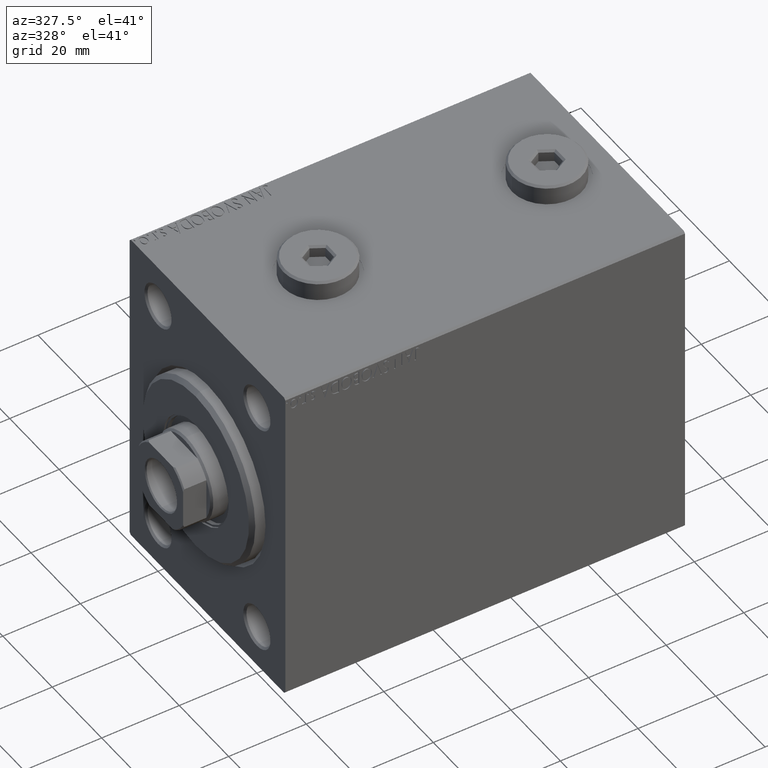
[diagram: clean part render]
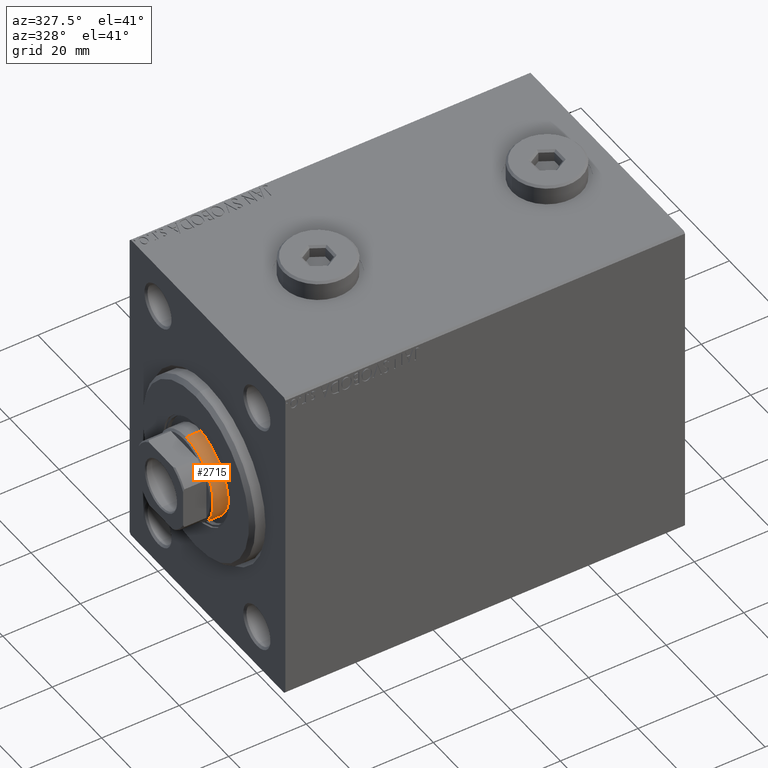
[diagram: same view with one face highlighted and labeled with its STEP entity id]
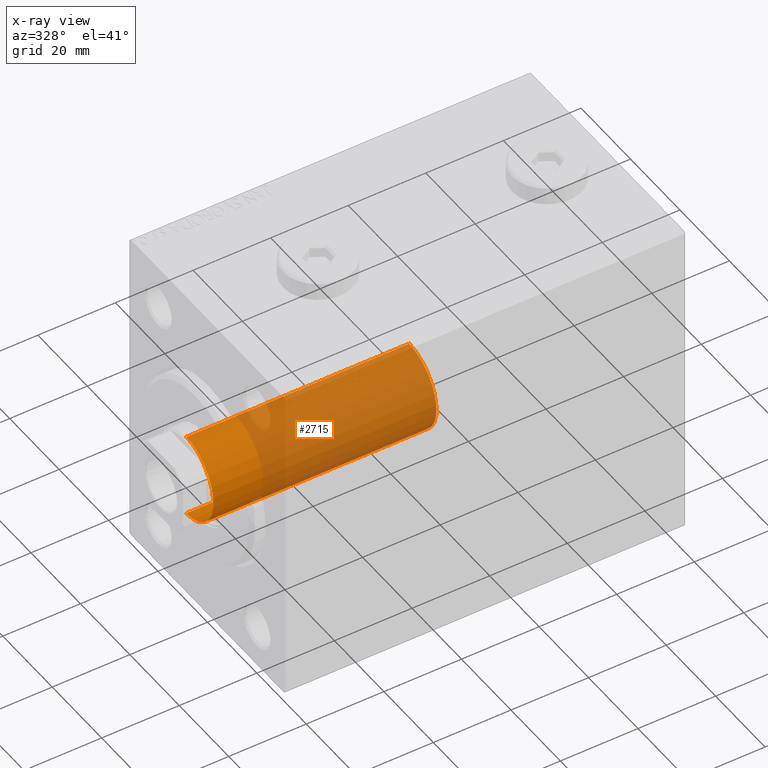
[diagram: x-ray of the same camera — body ghosted, the highlighted face saturated]
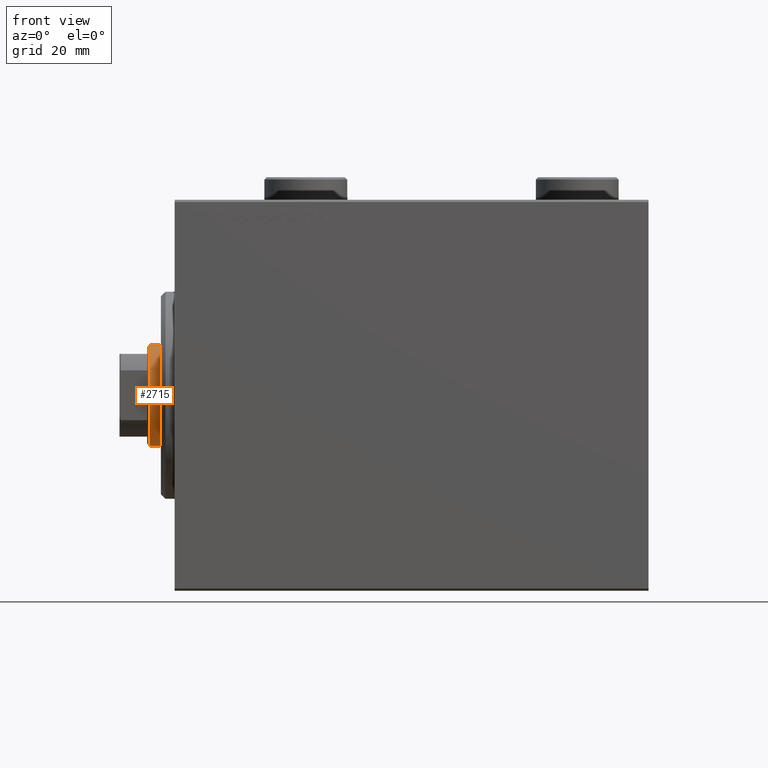
[diagram: same view with one face highlighted and labeled with its STEP entity id]
A machine part, auxiliary view. The second image highlights one B-rep face of the part: STEP entity #2715.
The next image is the same camera in x-ray: the body ghosted, the highlighted face saturated — about 77% of this face is hidden behind the body in this view.
A second angle (front view) of the same face is appended — the face is thin or edge-on in the first view.
In plain terms, the highlighted cylindrical surface (partial cylindrical patch) has radius 11 mm, axis along (1, -0, -0).
Its self-contained STEP definition (entity closure, byte-faithful):
#1324 = AXIS2_PLACEMENT_3D ( 'NONE', #16174, #23324, #19179 ) ;
#1981 = VECTOR ( 'NONE', #11691, 1000.000000000000000 ) ;
#2715 = ADVANCED_FACE ( 'NONE', ( #37300 ), #5715, .T. ) ;
#5715 = CYLINDRICAL_SURFACE ( 'NONE', #43533, 11.00000000000000000 ) ;
#7600 = LINE ( 'NONE', #32041, #41520 ) ;
#8457 = CARTESIAN_POINT ( 'NONE',  ( 11.00000000000000000, 1.347111479062088207E-15, 39.00000000000000000 ) ) ;
#8481 = ORIENTED_EDGE ( 'NONE', *, *, #22835, .T. ) ;
#9640 = CARTESIAN_POINT ( 'NONE',  ( 0.000000000000000000, 0.000000000000000000, 97.00000000000000000 ) ) ;
#11051 = DIRECTION ( 'NONE',  ( -0.000000000000000000, -0.000000000000000000, -1.000000000000000000 ) ) ;
#11691 = DIRECTION ( 'NONE',  ( -0.000000000000000000, -0.000000000000000000, -1.000000000000000000 ) ) ;
#16174 = CARTESIAN_POINT ( 'NONE',  ( 0.000000000000000000, 0.000000000000000000, 39.00000000000000000 ) ) ;
#17061 = DIRECTION ( 'NONE',  ( 1.000000000000000000, 0.000000000000000000, 0.000000000000000000 ) ) ;
#17199 = VERTEX_POINT ( 'NONE', #20039 ) ;
#19179 = DIRECTION ( 'NONE',  ( 1.000000000000000000, 0.000000000000000000, 0.000000000000000000 ) ) ;
#19781 = DIRECTION ( 'NONE',  ( -1.000000000000000000, 0.000000000000000000, 0.000000000000000000 ) ) ;
#20039 = CARTESIAN_POINT ( 'NONE',  ( 11.00000000000000000, 1.347111479062088207E-15, 96.50000000000004263 ) ) ;
#21450 = ORIENTED_EDGE ( 'NONE', *, *, #32806, .T. ) ;
#22835 = EDGE_CURVE ( 'NONE', #44064, #39090, #7600, .T. ) ;
#23324 = DIRECTION ( 'NONE',  ( 0.000000000000000000, 0.000000000000000000, 1.000000000000000000 ) ) ;
#24168 = CIRCLE ( 'NONE', #1324, 11.00000000000000000 ) ;
#24692 = DIRECTION ( 'NONE',  ( 0.000000000000000000, 0.000000000000000000, -1.000000000000000000 ) ) ;
#27702 = CARTESIAN_POINT ( 'NONE',  ( -11.00000000000000000, 0.000000000000000000, 96.50000000000004263 ) ) ;
#30126 = CARTESIAN_POINT ( 'NONE',  ( -11.00000000000000000, 0.000000000000000000, 39.00000000000000000 ) ) ;
#30176 = EDGE_CURVE ( 'NONE', #17199, #44658, #36563, .T. ) ;
#32041 = CARTESIAN_POINT ( 'NONE',  ( -11.00000000000000000, 0.000000000000000000, 97.00000000000000000 ) ) ;
#32235 = ORIENTED_EDGE ( 'NONE', *, *, #33986, .T. ) ;
#32243 = AXIS2_PLACEMENT_3D ( 'NONE', #45395, #24692, #17061 ) ;
#32806 = EDGE_CURVE ( 'NONE', #17199, #44064, #42530, .T. ) ;
#33986 = EDGE_CURVE ( 'NONE', #39090, #44658, #24168, .T. ) ;
#36563 = LINE ( 'NONE', #43021, #1981 ) ;
#37300 = FACE_OUTER_BOUND ( 'NONE', #39376, .T. ) ;
#39090 = VERTEX_POINT ( 'NONE', #30126 ) ;
#39376 = EDGE_LOOP ( 'NONE', ( #45110, #21450, #8481, #32235 ) ) ;
#40315 = DIRECTION ( 'NONE',  ( -0.000000000000000000, -0.000000000000000000, -1.000000000000000000 ) ) ;
#41520 = VECTOR ( 'NONE', #11051, 1000.000000000000000 ) ;
#42530 = CIRCLE ( 'NONE', #32243, 11.00000000000000000 ) ;
#43021 = CARTESIAN_POINT ( 'NONE',  ( 11.00000000000000000, 1.347111479062088207E-15, 97.00000000000000000 ) ) ;
#43533 = AXIS2_PLACEMENT_3D ( 'NONE', #9640, #40315, #19781 ) ;
#44064 = VERTEX_POINT ( 'NONE', #27702 ) ;
#44658 = VERTEX_POINT ( 'NONE', #8457 ) ;
#45110 = ORIENTED_EDGE ( 'NONE', *, *, #30176, .F. ) ;
#45395 = CARTESIAN_POINT ( 'NONE',  ( 0.000000000000000000, 0.000000000000000000, 96.50000000000004263 ) ) ;